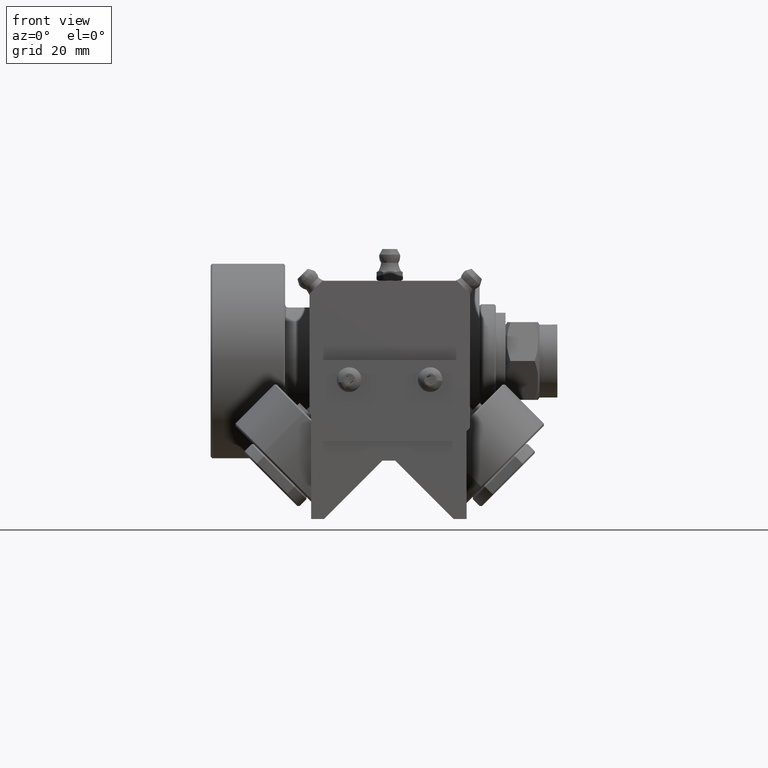
[diagram: clean part render]
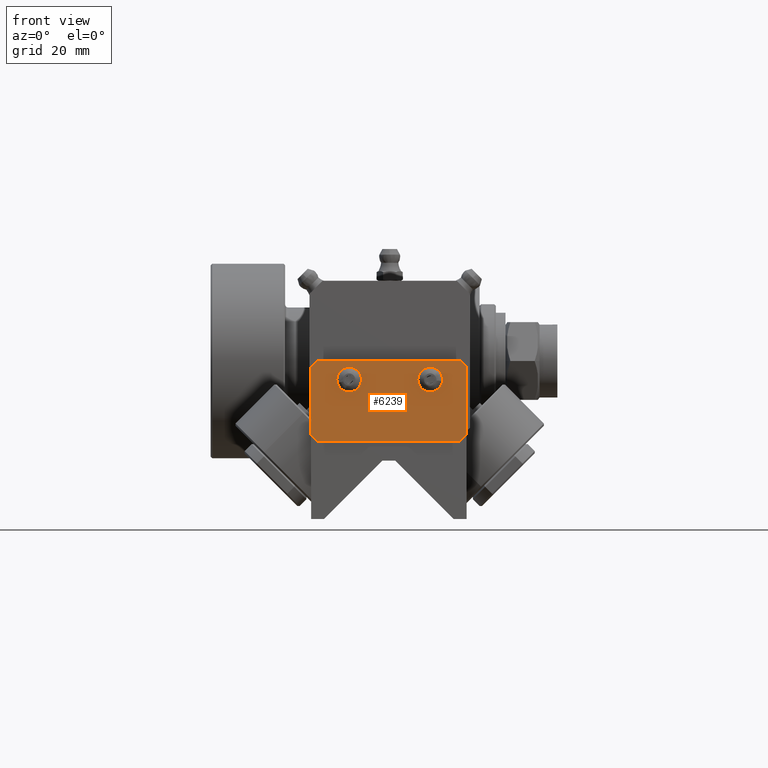
[diagram: same view with one face highlighted and labeled with its STEP entity id]
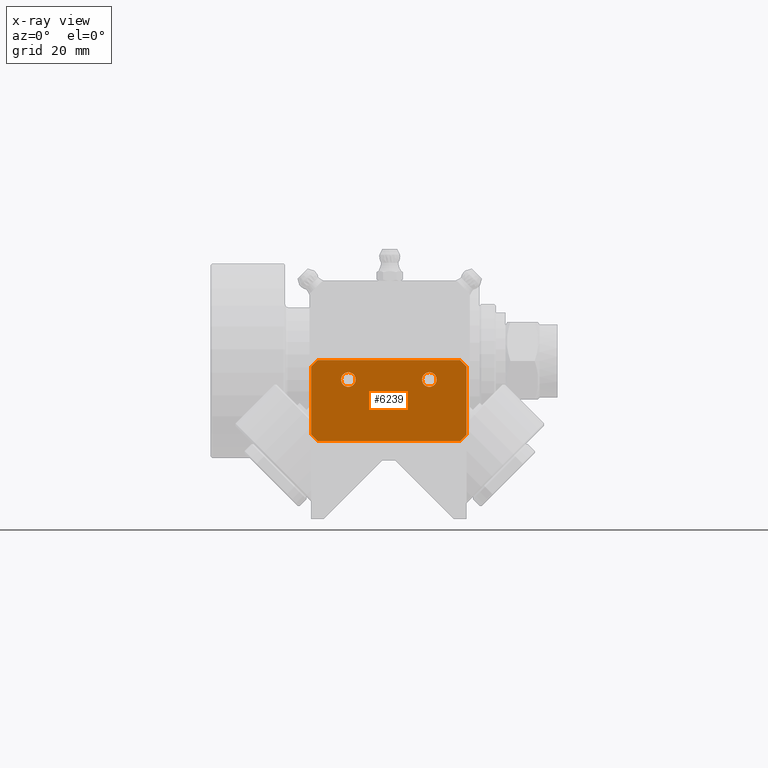
[diagram: x-ray of the same camera — body ghosted, the highlighted face saturated]
A machine part, front view. The second image highlights one B-rep face of the part: STEP entity #6239.
The next image is the same camera in x-ray: the body ghosted, the highlighted face saturated — about 0% of this face is hidden behind the body in this view.
In plain terms, the highlighted planar face has unit normal (0, -1, 0).
Its self-contained STEP definition (entity closure, byte-faithful):
#490=FACE_BOUND('',#1387,.T.);
#491=FACE_BOUND('',#1388,.T.);
#631=PLANE('',#7376);
#961=FACE_OUTER_BOUND('',#1386,.T.);
#1386=EDGE_LOOP('',(#5716,#5717,#5718,#5719,#5720,#5721,#5722,#5723));
#1387=EDGE_LOOP('',(#5724));
#1388=EDGE_LOOP('',(#5725));
#1730=CIRCLE('',#7377,2.25);
#1731=CIRCLE('',#7378,2.25);
#2173=LINE('',#12995,#2521);
#2177=LINE('',#13003,#2525);
#2180=LINE('',#13009,#2528);
#2181=LINE('',#13011,#2529);
#2182=LINE('',#13013,#2530);
#2183=LINE('',#13015,#2531);
#2184=LINE('',#13017,#2532);
#2185=LINE('',#13018,#2533);
#2521=VECTOR('',#9126,10.);
#2525=VECTOR('',#9132,10.);
#2528=VECTOR('',#9137,10.);
#2529=VECTOR('',#9138,10.);
#2530=VECTOR('',#9139,10.);
#2531=VECTOR('',#9140,10.);
#2532=VECTOR('',#9141,10.);
#2533=VECTOR('',#9142,10.);
#3118=VERTEX_POINT('',#12993);
#3119=VERTEX_POINT('',#12994);
#3122=VERTEX_POINT('',#13002);
#3124=VERTEX_POINT('',#13008);
#3125=VERTEX_POINT('',#13010);
#3126=VERTEX_POINT('',#13012);
#3127=VERTEX_POINT('',#13014);
#3128=VERTEX_POINT('',#13016);
#3129=VERTEX_POINT('',#13019);
#3130=VERTEX_POINT('',#13021);
#3989=EDGE_CURVE('',#3118,#3119,#2173,.T.);
#3993=EDGE_CURVE('',#3122,#3119,#2177,.T.);
#3996=EDGE_CURVE('',#3118,#3124,#2180,.T.);
#3997=EDGE_CURVE('',#3125,#3124,#2181,.T.);
#3998=EDGE_CURVE('',#3125,#3126,#2182,.T.);
#3999=EDGE_CURVE('',#3127,#3126,#2183,.T.);
#4000=EDGE_CURVE('',#3127,#3128,#2184,.T.);
#4001=EDGE_CURVE('',#3122,#3128,#2185,.T.);
#4002=EDGE_CURVE('',#3129,#3129,#1730,.T.);
#4003=EDGE_CURVE('',#3130,#3130,#1731,.T.);
#5716=ORIENTED_EDGE('',*,*,#3989,.F.);
#5717=ORIENTED_EDGE('',*,*,#3996,.T.);
#5718=ORIENTED_EDGE('',*,*,#3997,.F.);
#5719=ORIENTED_EDGE('',*,*,#3998,.T.);
#5720=ORIENTED_EDGE('',*,*,#3999,.F.);
#5721=ORIENTED_EDGE('',*,*,#4000,.T.);
#5722=ORIENTED_EDGE('',*,*,#4001,.F.);
#5723=ORIENTED_EDGE('',*,*,#3993,.T.);
#5724=ORIENTED_EDGE('',*,*,#4002,.T.);
#5725=ORIENTED_EDGE('',*,*,#4003,.T.);
#6239=ADVANCED_FACE('',(#961,#490,#491),#631,.T.);
#7376=AXIS2_PLACEMENT_3D('',#13007,#9135,#9136);
#7377=AXIS2_PLACEMENT_3D('',#13020,#9143,#9144);
#7378=AXIS2_PLACEMENT_3D('',#13022,#9145,#9146);
#9126=DIRECTION('',(-0.707106781186548,0.,-0.707106781186547));
#9132=DIRECTION('',(1.,0.,-3.73847008512192E-16));
#9135=DIRECTION('center_axis',(0.,-1.,0.));
#9136=DIRECTION('ref_axis',(0.,0.,-1.));
#9137=DIRECTION('',(-3.5527136788005E-16,0.,1.));
#9138=DIRECTION('',(0.707106781186548,0.,-0.707106781186548));
#9139=DIRECTION('',(-1.,0.,0.));
#9140=DIRECTION('',(0.707106781186547,0.,0.707106781186548));
#9141=DIRECTION('',(-1.77635683940025E-16,0.,-1.));
#9142=DIRECTION('',(-0.707106781186548,0.,0.707106781186547));
#9143=DIRECTION('center_axis',(0.,1.,0.));
#9144=DIRECTION('ref_axis',(1.,0.,1.97372982155583E-15));
#9145=DIRECTION('center_axis',(0.,1.,0.));
#9146=DIRECTION('ref_axis',(1.,0.,0.));
#12993=CARTESIAN_POINT('',(24.,-0.75,2.));
#12994=CARTESIAN_POINT('',(22.,-0.75,2.9681400662747E-15));
#12995=CARTESIAN_POINT('',(20.125,-0.75,-1.875));
#13002=CARTESIAN_POINT('',(-22.,-0.75,1.94174084408112E-14));
#13003=CARTESIAN_POINT('',(-24.,-0.75,2.01651024578355E-14));
#13007=CARTESIAN_POINT('Origin',(4.44089209850063E-15,-0.75,12.5));
#13008=CARTESIAN_POINT('',(24.,-0.75,23.));
#13009=CARTESIAN_POINT('',(24.,-0.75,2.22044604925031E-15));
#13010=CARTESIAN_POINT('',(22.,-0.75,25.));
#13011=CARTESIAN_POINT('',(20.125,-0.75,26.875));
#13012=CARTESIAN_POINT('',(-22.,-0.75,25.));
#13013=CARTESIAN_POINT('',(24.,-0.75,25.));
#13014=CARTESIAN_POINT('',(-24.,-0.75,23.));
#13015=CARTESIAN_POINT('',(-20.125,-0.75,26.875));
#13016=CARTESIAN_POINT('',(-24.,-0.75,2.00000000000002));
#13017=CARTESIAN_POINT('',(-24.,-0.75,25.));
#13018=CARTESIAN_POINT('',(-20.125,-0.75,-1.87499999999999));
#13019=CARTESIAN_POINT('',(10.25,-0.75,19.));
#13020=CARTESIAN_POINT('Origin',(12.5,-0.75,19.));
#13021=CARTESIAN_POINT('',(-14.75,-0.75,19.));
#13022=CARTESIAN_POINT('Origin',(-12.5,-0.75,19.));